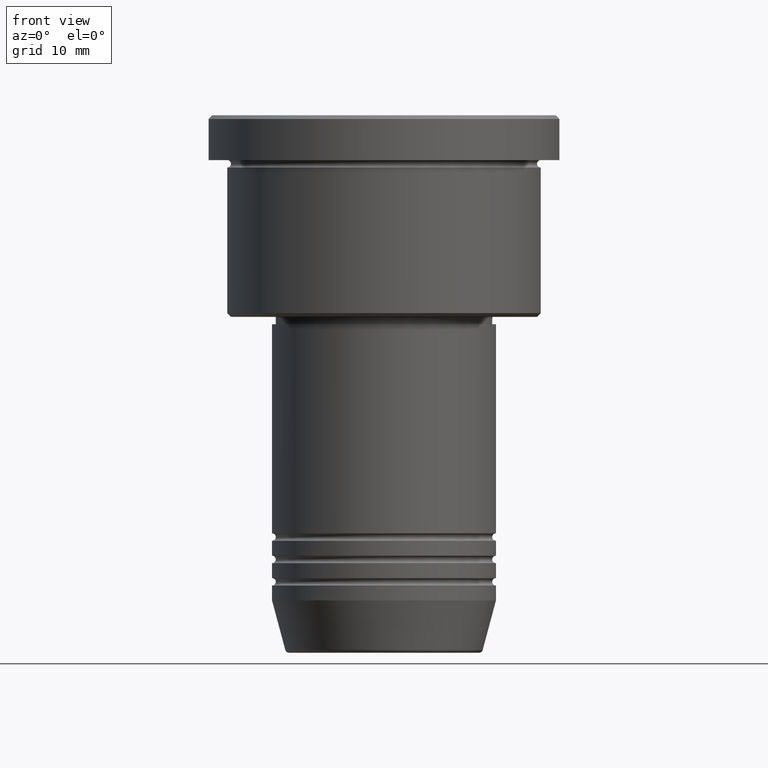
[diagram: clean part render]
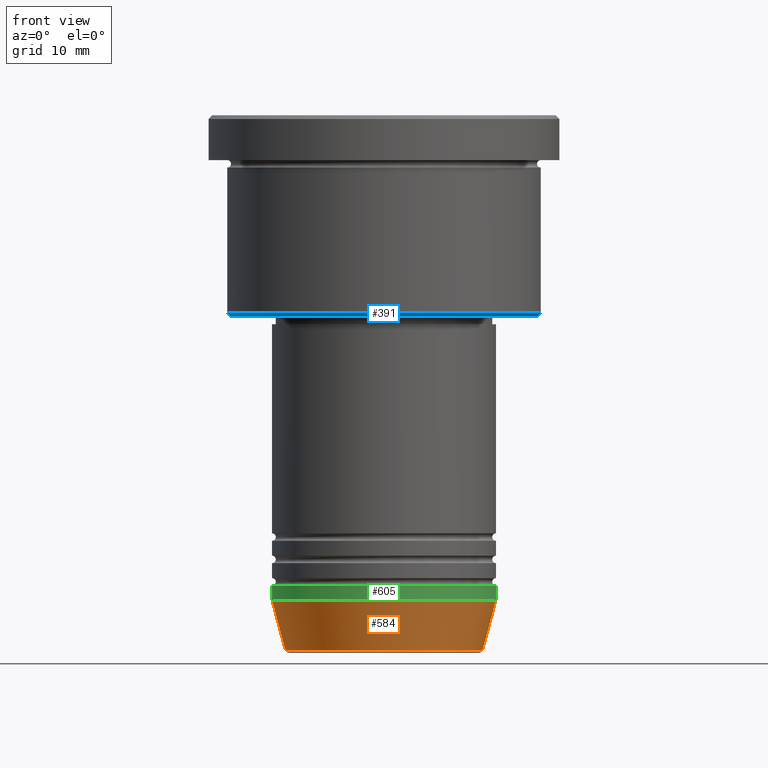
[diagram: same view with three faces highlighted in distinct colors, each labeled with its STEP entity id]
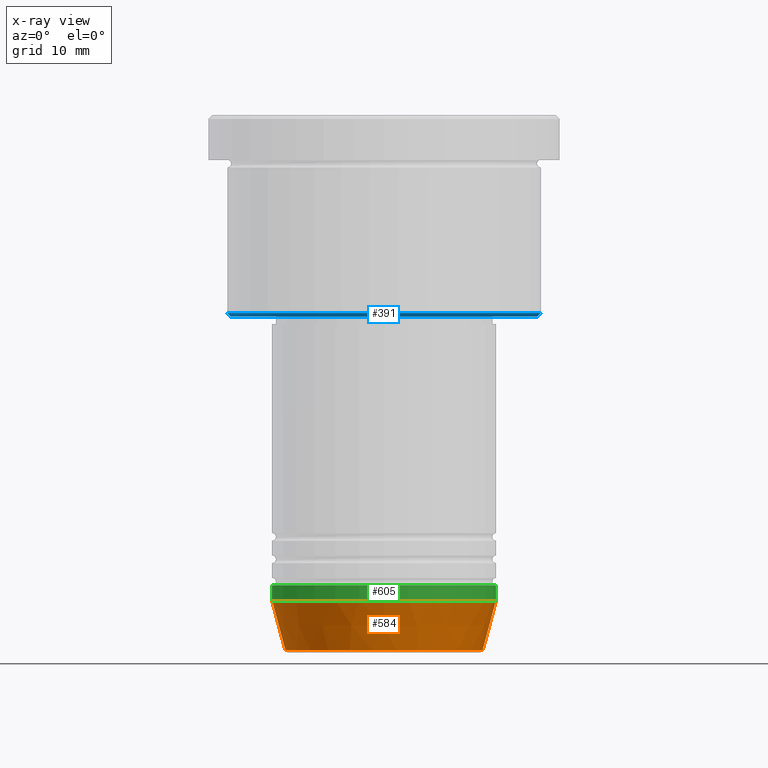
[diagram: x-ray of the same camera — body ghosted, the three highlighted faces saturated]
A machine part, front view with three faces highlighted in distinct colors.
The next image is the same camera in x-ray (body ghosted, the three faces saturated) — at least one of them is partly hidden behind the body in this view.
Their STEP definitions:

[orange] entity #584 — the highlighted conical surface has half-angle 15 deg.
#43 = VERTEX_POINT ( 'NONE', #742 ) ;
#53 = CIRCLE ( 'NONE', #817, 13.22365507213718949 ) ;
#69 = LINE ( 'NONE', #1083, #855 ) ;
#101 = VERTEX_POINT ( 'NONE', #886 ) ;
#125 = LINE ( 'NONE', #955, #745 ) ;
#226 = CONICAL_SURFACE ( 'NONE', #928, 15.00000000000000000, 0.2617993877991500740 ) ;
#234 = DIRECTION ( 'NONE',  ( -0.2588190451025213501, 3.169619151431772337E-17, 0.9659258262890680902 ) ) ;
#237 = VERTEX_POINT ( 'NONE', #895 ) ;
#251 = DIRECTION ( 'NONE',  ( 0.2588190451025213501, 0.000000000000000000, 0.9659258262890680902 ) ) ;
#278 = DIRECTION ( 'NONE',  ( -0.000000000000000000, -0.000000000000000000, 1.000000000000000000 ) ) ;
#308 = DIRECTION ( 'NONE',  ( 1.000000000000000000, 0.000000000000000000, 0.000000000000000000 ) ) ;
#325 = DIRECTION ( 'NONE',  ( -0.000000000000000000, -0.000000000000000000, 1.000000000000000000 ) ) ;
#345 = EDGE_CURVE ( 'NONE', #43, #237, #125, .T. ) ;
#414 = VERTEX_POINT ( 'NONE', #978 ) ;
#425 = CARTESIAN_POINT ( 'NONE',  ( 0.000000000000000000, 0.000000000000000000, -71.62940952255125637 ) ) ;
#501 = DIRECTION ( 'NONE',  ( 1.000000000000000000, 0.000000000000000000, 0.000000000000000000 ) ) ;
#517 = FACE_OUTER_BOUND ( 'NONE', #909, .T. ) ;
#584 = ADVANCED_FACE ( 'NONE', ( #517 ), #226, .T. ) ;
#594 = DIRECTION ( 'NONE',  ( -0.000000000000000000, -0.000000000000000000, 1.000000000000000000 ) ) ;
#635 = AXIS2_PLACEMENT_3D ( 'NONE', #1141, #594, #501 ) ;
#678 = DIRECTION ( 'NONE',  ( 1.000000000000000000, 0.000000000000000000, 0.000000000000000000 ) ) ;
#716 = ORIENTED_EDGE ( 'NONE', *, *, #945, .T. ) ;
#725 = EDGE_CURVE ( 'NONE', #237, #414, #1143, .T. ) ;
#742 = CARTESIAN_POINT ( 'NONE',  ( -13.22365507213718949, 1.728200442216588386E-15, -71.62940952255125637 ) ) ;
#745 = VECTOR ( 'NONE', #234, 1000.000000000000000 ) ;
#761 = ORIENTED_EDGE ( 'NONE', *, *, #725, .F. ) ;
#788 = CARTESIAN_POINT ( 'NONE',  ( 0.000000000000000000, 0.000000000000000000, -65.00000000000000000 ) ) ;
#809 = EDGE_CURVE ( 'NONE', #43, #101, #53, .T. ) ;
#817 = AXIS2_PLACEMENT_3D ( 'NONE', #425, #325, #678 ) ;
#855 = VECTOR ( 'NONE', #251, 1000.000000000000000 ) ;
#886 = CARTESIAN_POINT ( 'NONE',  ( 13.22365507213718949, 0.000000000000000000, -71.62940952255125637 ) ) ;
#895 = CARTESIAN_POINT ( 'NONE',  ( -15.00000000000000000, 1.836970198721029589E-15, -65.00000000000000000 ) ) ;
#909 = EDGE_LOOP ( 'NONE', ( #989, #1099, #716, #761 ) ) ;
#928 = AXIS2_PLACEMENT_3D ( 'NONE', #788, #278, #308 ) ;
#945 = EDGE_CURVE ( 'NONE', #101, #414, #69, .T. ) ;
#955 = CARTESIAN_POINT ( 'NONE',  ( -15.00000000000000000, 1.836970198721029589E-15, -65.00000000000000000 ) ) ;
#978 = CARTESIAN_POINT ( 'NONE',  ( 15.00000000000000000, 0.000000000000000000, -65.00000000000000000 ) ) ;
#989 = ORIENTED_EDGE ( 'NONE', *, *, #345, .F. ) ;
#1083 = CARTESIAN_POINT ( 'NONE',  ( 15.00000000000000000, 0.000000000000000000, -65.00000000000000000 ) ) ;
#1099 = ORIENTED_EDGE ( 'NONE', *, *, #809, .T. ) ;
#1141 = CARTESIAN_POINT ( 'NONE',  ( 0.000000000000000000, 0.000000000000000000, -65.00000000000000000 ) ) ;
#1143 = CIRCLE ( 'NONE', #635, 15.00000000000000000 ) ;

[blue] entity #391 — the highlighted conical surface has half-angle 45 deg.
#51 = CONICAL_SURFACE ( 'NONE', #853, 21.00000000000000000, 0.7853981633974482790 ) ;
#73 = ORIENTED_EDGE ( 'NONE', *, *, #261, .F. ) ;
#76 = EDGE_CURVE ( 'NONE', #688, #1093, #669, .T. ) ;
#111 = DIRECTION ( 'NONE',  ( -1.000000000000000000, 0.000000000000000000, 0.000000000000000000 ) ) ;
#138 = EDGE_CURVE ( 'NONE', #545, #1093, #866, .T. ) ;
#183 = DIRECTION ( 'NONE',  ( 0.000000000000000000, 0.000000000000000000, -1.000000000000000000 ) ) ;
#218 = FACE_OUTER_BOUND ( 'NONE', #1108, .T. ) ;
#227 = EDGE_CURVE ( 'NONE', #545, #728, #797, .T. ) ;
#261 = EDGE_CURVE ( 'NONE', #728, #688, #899, .T. ) ;
#274 = DIRECTION ( 'NONE',  ( -0.7071067811865474617, 8.659560562354932858E-17, 0.7071067811865474617 ) ) ;
#281 = CARTESIAN_POINT ( 'NONE',  ( 0.000000000000000000, 0.000000000000000000, -27.00000000000000355 ) ) ;
#366 = CARTESIAN_POINT ( 'NONE',  ( -21.00000000000000000, 2.571758278209441661E-15, -26.50000000000002132 ) ) ;
#391 = ADVANCED_FACE ( 'NONE', ( #218 ), #51, .T. ) ;
#419 = DIRECTION ( 'NONE',  ( -0.000000000000000000, -0.000000000000000000, 1.000000000000000000 ) ) ;
#423 = VECTOR ( 'NONE', #802, 1000.000000000000114 ) ;
#433 = DIRECTION ( 'NONE',  ( 1.000000000000000000, 0.000000000000000000, 0.000000000000000000 ) ) ;
#454 = ORIENTED_EDGE ( 'NONE', *, *, #227, .F. ) ;
#474 = ORIENTED_EDGE ( 'NONE', *, *, #76, .F. ) ;
#529 = VECTOR ( 'NONE', #274, 1000.000000000000114 ) ;
#545 = VERTEX_POINT ( 'NONE', #556 ) ;
#548 = CARTESIAN_POINT ( 'NONE',  ( 21.00000000000000000, 0.000000000000000000, -26.50000000000002132 ) ) ;
#556 = CARTESIAN_POINT ( 'NONE',  ( 20.50000000000001776, 0.000000000000000000, -27.00000000000000355 ) ) ;
#657 = CARTESIAN_POINT ( 'NONE',  ( -21.00000000000000000, 2.571758278209441661E-15, -26.50000000000002132 ) ) ;
#669 = CIRCLE ( 'NONE', #684, 21.00000000000000000 ) ;
#684 = AXIS2_PLACEMENT_3D ( 'NONE', #1102, #925, #111 ) ;
#688 = VERTEX_POINT ( 'NONE', #657 ) ;
#728 = VERTEX_POINT ( 'NONE', #1134 ) ;
#797 = CIRCLE ( 'NONE', #1003, 20.50000000000001776 ) ;
#802 = DIRECTION ( 'NONE',  ( 0.7071067811865474617, 0.000000000000000000, 0.7071067811865474617 ) ) ;
#853 = AXIS2_PLACEMENT_3D ( 'NONE', #871, #419, #433 ) ;
#866 = LINE ( 'NONE', #548, #423 ) ;
#871 = CARTESIAN_POINT ( 'NONE',  ( 0.000000000000000000, 0.000000000000000000, -26.50000000000002132 ) ) ;
#899 = LINE ( 'NONE', #366, #529 ) ;
#917 = DIRECTION ( 'NONE',  ( -1.000000000000000000, 0.000000000000000000, 0.000000000000000000 ) ) ;
#925 = DIRECTION ( 'NONE',  ( -0.000000000000000000, -0.000000000000000000, 1.000000000000000000 ) ) ;
#956 = ORIENTED_EDGE ( 'NONE', *, *, #138, .T. ) ;
#1003 = AXIS2_PLACEMENT_3D ( 'NONE', #281, #183, #917 ) ;
#1093 = VERTEX_POINT ( 'NONE', #1115 ) ;
#1102 = CARTESIAN_POINT ( 'NONE',  ( 0.000000000000000000, 0.000000000000000000, -26.50000000000002132 ) ) ;
#1108 = EDGE_LOOP ( 'NONE', ( #73, #454, #956, #474 ) ) ;
#1115 = CARTESIAN_POINT ( 'NONE',  ( 21.00000000000000000, 0.000000000000000000, -26.50000000000002132 ) ) ;
#1134 = CARTESIAN_POINT ( 'NONE',  ( -20.50000000000001776, 2.541142108230759057E-15, -27.00000000000000355 ) ) ;

[green] entity #605 — the highlighted cylindrical surface (partial cylindrical patch) has radius 15 mm, axis along (-0, -0, 1).
#33 = ORIENTED_EDGE ( 'NONE', *, *, #1123, .F. ) ;
#94 = CIRCLE ( 'NONE', #385, 15.00000000000000000 ) ;
#120 = CARTESIAN_POINT ( 'NONE',  ( 15.00000000000000000, 0.000000000000000000, -63.00000000000000000 ) ) ;
#163 = LINE ( 'NONE', #1172, #190 ) ;
#190 = VECTOR ( 'NONE', #1161, 1000.000000000000000 ) ;
#215 = CYLINDRICAL_SURFACE ( 'NONE', #1065, 15.00000000000000000 ) ;
#232 = ORIENTED_EDGE ( 'NONE', *, *, #725, .T. ) ;
#237 = VERTEX_POINT ( 'NONE', #895 ) ;
#271 = VERTEX_POINT ( 'NONE', #626 ) ;
#385 = AXIS2_PLACEMENT_3D ( 'NONE', #465, #846, #663 ) ;
#387 = DIRECTION ( 'NONE',  ( 1.000000000000000000, 0.000000000000000000, 0.000000000000000000 ) ) ;
#414 = VERTEX_POINT ( 'NONE', #978 ) ;
#465 = CARTESIAN_POINT ( 'NONE',  ( 0.000000000000000000, 0.000000000000000000, -63.00000000000000000 ) ) ;
#481 = DIRECTION ( 'NONE',  ( -0.000000000000000000, -0.000000000000000000, 1.000000000000000000 ) ) ;
#496 = CARTESIAN_POINT ( 'NONE',  ( 15.00000000000000000, 0.000000000000000000, 0.000000000000000000 ) ) ;
#501 = DIRECTION ( 'NONE',  ( 1.000000000000000000, 0.000000000000000000, 0.000000000000000000 ) ) ;
#525 = EDGE_LOOP ( 'NONE', ( #920, #232, #1054, #33 ) ) ;
#594 = DIRECTION ( 'NONE',  ( -0.000000000000000000, -0.000000000000000000, 1.000000000000000000 ) ) ;
#605 = ADVANCED_FACE ( 'NONE', ( #1120 ), #215, .T. ) ;
#626 = CARTESIAN_POINT ( 'NONE',  ( -15.00000000000000000, 1.836970198721029589E-15, -63.00000000000000000 ) ) ;
#635 = AXIS2_PLACEMENT_3D ( 'NONE', #1141, #594, #501 ) ;
#636 = VECTOR ( 'NONE', #481, 1000.000000000000000 ) ;
#663 = DIRECTION ( 'NONE',  ( 1.000000000000000000, 0.000000000000000000, 0.000000000000000000 ) ) ;
#698 = VERTEX_POINT ( 'NONE', #120 ) ;
#725 = EDGE_CURVE ( 'NONE', #237, #414, #1143, .T. ) ;
#736 = CARTESIAN_POINT ( 'NONE',  ( 0.000000000000000000, 0.000000000000000000, 0.000000000000000000 ) ) ;
#846 = DIRECTION ( 'NONE',  ( -0.000000000000000000, -0.000000000000000000, 1.000000000000000000 ) ) ;
#874 = EDGE_CURVE ( 'NONE', #237, #271, #163, .T. ) ;
#895 = CARTESIAN_POINT ( 'NONE',  ( -15.00000000000000000, 1.836970198721029589E-15, -65.00000000000000000 ) ) ;
#919 = LINE ( 'NONE', #496, #636 ) ;
#920 = ORIENTED_EDGE ( 'NONE', *, *, #874, .F. ) ;
#978 = CARTESIAN_POINT ( 'NONE',  ( 15.00000000000000000, 0.000000000000000000, -65.00000000000000000 ) ) ;
#1005 = DIRECTION ( 'NONE',  ( -0.000000000000000000, -0.000000000000000000, 1.000000000000000000 ) ) ;
#1021 = EDGE_CURVE ( 'NONE', #414, #698, #919, .T. ) ;
#1054 = ORIENTED_EDGE ( 'NONE', *, *, #1021, .T. ) ;
#1065 = AXIS2_PLACEMENT_3D ( 'NONE', #736, #1005, #387 ) ;
#1120 = FACE_OUTER_BOUND ( 'NONE', #525, .T. ) ;
#1123 = EDGE_CURVE ( 'NONE', #271, #698, #94, .T. ) ;
#1141 = CARTESIAN_POINT ( 'NONE',  ( 0.000000000000000000, 0.000000000000000000, -65.00000000000000000 ) ) ;
#1143 = CIRCLE ( 'NONE', #635, 15.00000000000000000 ) ;
#1161 = DIRECTION ( 'NONE',  ( -0.000000000000000000, -0.000000000000000000, 1.000000000000000000 ) ) ;
#1172 = CARTESIAN_POINT ( 'NONE',  ( -15.00000000000000000, 1.836970198721029589E-15, 0.000000000000000000 ) ) ;